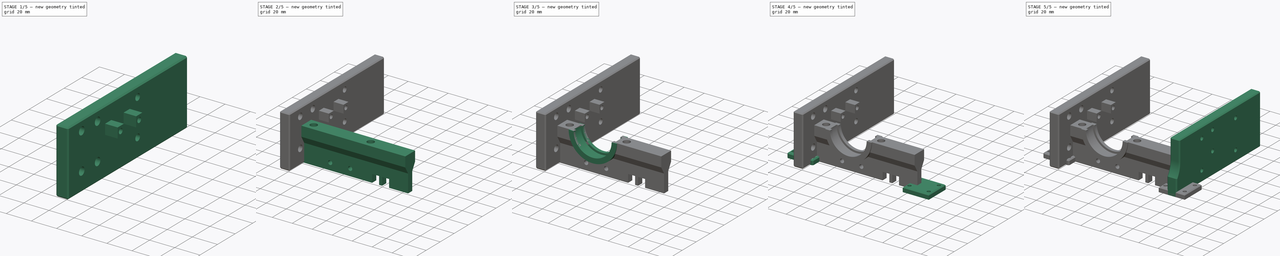
[diagram: build sequence overview — one tinted view per stage of 5, left to right]
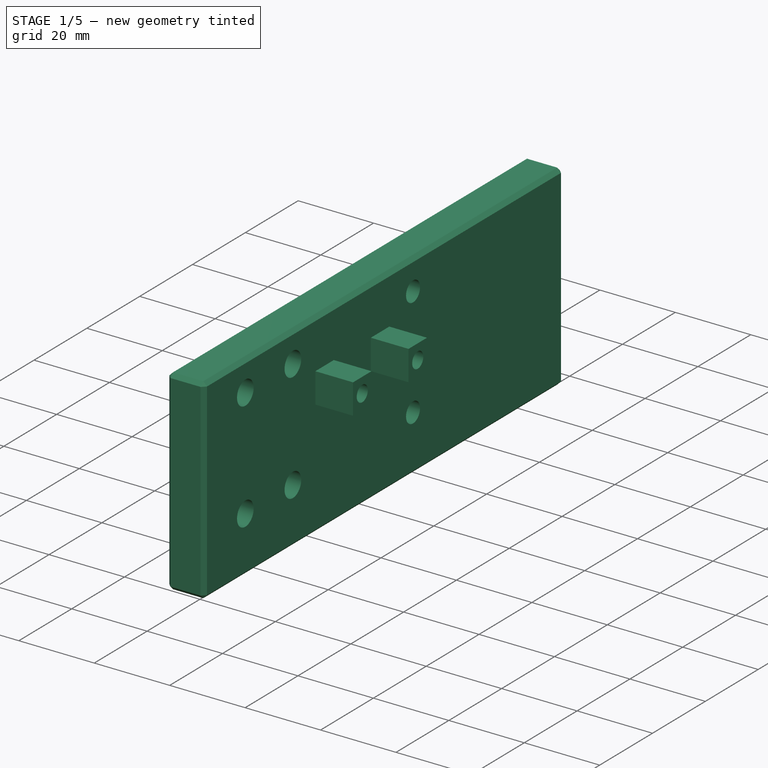
[diagram: stage 1 of 5 — iso view after this stage's code; geometry added in this stage tinted green]
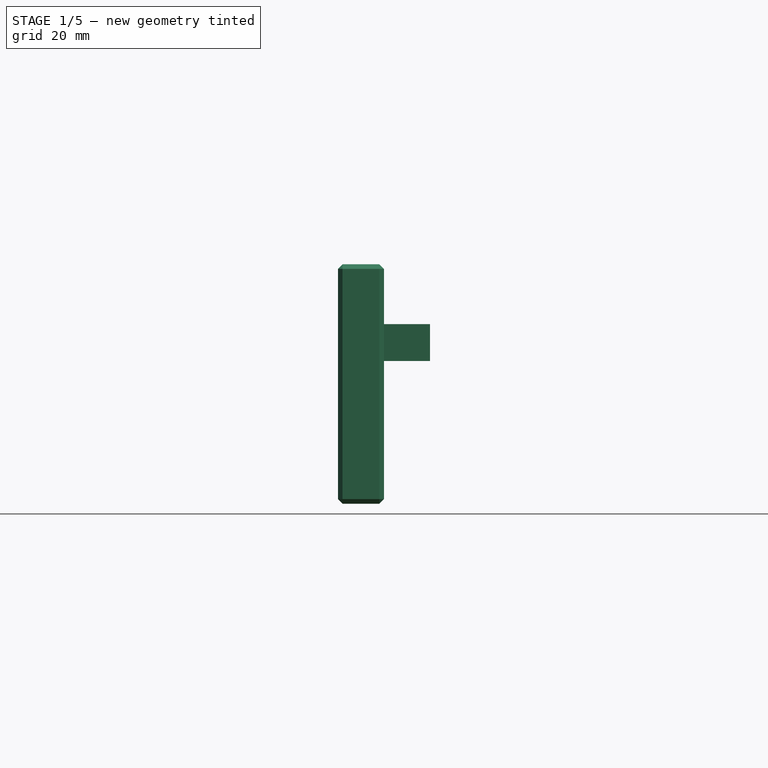
[diagram: stage 1 of 5 — front view after this stage's code; geometry added in this stage tinted green]
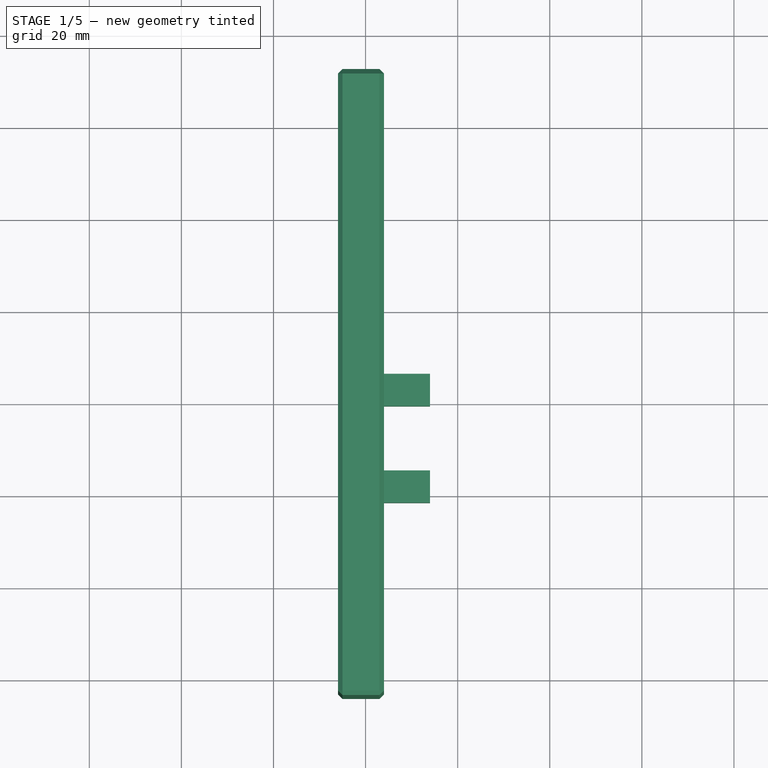
[diagram: stage 1 of 5 — top view after this stage's code; geometry added in this stage tinted green]
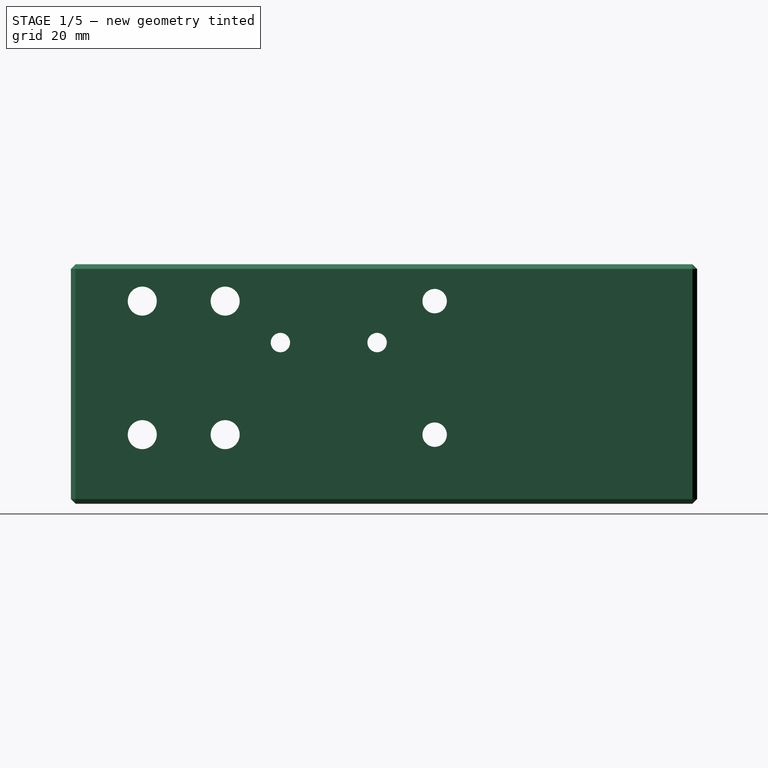
[diagram: stage 1 of 5 — right view after this stage's code; geometry added in this stage tinted green]
FCSTD DOCUMENT  (FreeCAD 0.21R32110 (Git))
Label: Frame
License: All rights reserved
LicenseURL: http://en.wikipedia.org/wiki/All_rights_reserved
objects: Sketcher::SketchObject×12, PartDesign::Pad×6, PartDesign::Pocket×6, PartDesign::Body×5, PartDesign::Chamfer×5, PartDesign::LinearPattern×1, PartDesign::CoordinateSystem×1, PartDesign::FeatureBase×1, App::Part×1
note: 54 computed .brp shape members not serialized (recipe doc carries the construction recipe); baked Part::Feature solids carry a one-line shape summary decoded from their .brp

FEATURE [Sketcher::SketchObject] Sketch008
  AttachmentOffset = pos=(0,0,-36) rot=(0,0,1;0rad)
  FullyConstrained = true
  MapMode = 5
  Placement = pos=(-36,8e-15,-8e-15) rot=(0.57735,0.57735,0.57735;2.0944rad)
  Support = -> [YZ_Plane003]
  sketch-geometry (10):
    g0: LineSegment StartX=112 StartY=17 StartZ=0 EndX=-24 EndY=17 EndZ=0
    g1: LineSegment StartX=-24 StartY=17 StartZ=0 EndX=-24 EndY=-35 EndZ=0
    g2: LineSegment StartX=-24 StartY=-35 StartZ=0 EndX=112 EndY=-35 EndZ=0
    g3: LineSegment StartX=112 StartY=-35 StartZ=0 EndX=112 EndY=17 EndZ=0
    g4: Circle CenterX=-8.5 CenterY=9 CenterZ=0 NormalX=0 NormalY=0 NormalZ=1 AngleXU=0 Radius=3.15
    g5: Circle CenterX=9.5 CenterY=9 CenterZ=0 NormalX=0 NormalY=0 NormalZ=1 AngleXU=0 Radius=3.15
    g6: Circle CenterX=9.5 CenterY=-20 CenterZ=0 NormalX=0 NormalY=0 NormalZ=1 AngleXU=0 Radius=3.15
    g7: Circle CenterX=-8.5 CenterY=-20 CenterZ=0 NormalX=0 NormalY=0 NormalZ=1 AngleXU=0 Radius=3.15
    g8: Circle CenterX=55 CenterY=9 CenterZ=0 NormalX=0 NormalY=0 NormalZ=1 AngleXU=0 Radius=2.65
    g9: Circle CenterX=55 CenterY=-20 CenterZ=0 NormalX=0 NormalY=0 NormalZ=1 AngleXU=0 Radius=2.65
  constraints (30):
    c: Coincident(g0,g1)
    c: Coincident(g1,g2)
    c: Coincident(g2,g3)
    c: Coincident(g3,g0)
    c: Horizontal(g0)
    c: Horizontal(g2)
    c: Vertical(g1)
    c: Vertical(g3)
    c: Distance(g2) = 136
    c: Distance(g1) = 52
    c: DistanceY(g2) = -35
    c: DistanceX(g1) = -24
    c: Equal(g4,g5)
    c: Equal(g4,g6)
    c: Equal(g4,g7)
    c: Diameter(g4) = 6.3
    c: Vertical(g7,g4)
    c: Vertical(g6,g5)
    c: Horizontal(g4,g5)
    c: Horizontal(g7,g6)
    c: DistanceX(g7) = -8.5
    c: DistanceY(g6,g5) = 29
    c: DistanceY(g6) = -20
    c: DistanceX(g7,g6) = 18
    c: Horizontal(g5,g8)
    c: Horizontal(g6,g9)
    c: Vertical(g9,g8)
    c: DistanceX(g1,g9) = 79
    c: Equal(g8,g9)
    c: Diameter(g8) = 5.3
FEATURE [PartDesign::Pad] Pad003
  Direction = (1,-2e-16,3e-16)
  Length = 10
  Length2 = 10
  Placement = pos=(0,0,0) rot=(0.57735,0.57735,0.57735;2.0944rad)
  Profile = -> Sketch008
  ReferenceAxis = -> Sketch008 [N_Axis]
  Reversed = true
  Type = 0
FEATURE [Sketcher::SketchObject] Sketch010
  AttachmentOffset = pos=(0,4,0) rot=(0,0,1;0rad)
  FullyConstrained = true
  MapMode = 5
  Placement = pos=(0,4,0) rot=(0,0,1;0rad)
  Support = -> [XY_Plane003]
  sketch-geometry (8):
    g0: LineSegment StartX=-36 StartY=42 StartZ=0 EndX=-26 EndY=42 EndZ=0
    g1: LineSegment StartX=-26 StartY=42 StartZ=0 EndX=-26 EndY=35 EndZ=0
    g2: LineSegment StartX=-26 StartY=35 StartZ=0 EndX=-36 EndY=35 EndZ=0
    g3: LineSegment StartX=-36 StartY=35 StartZ=0 EndX=-36 EndY=42 EndZ=0
    g4: LineSegment StartX=-36 StartY=21 StartZ=0 EndX=-26 EndY=21 EndZ=0
    g5: LineSegment StartX=-26 StartY=21 StartZ=0 EndX=-26 EndY=14 EndZ=0
    g6: LineSegment StartX=-26 StartY=14 StartZ=0 EndX=-36 EndY=14 EndZ=0
    g7: LineSegment StartX=-36 StartY=14 StartZ=0 EndX=-36 EndY=21 EndZ=0
  constraints (24):
    c: Coincident(g0,g1)
    c: Coincident(g1,g2)
    c: Coincident(g2,g3)
    c: Coincident(g3,g0)
    c: Horizontal(g0)
    c: Horizontal(g2)
    c: Vertical(g1)
    c: Vertical(g3)
    c: Coincident(g4,g5)
    c: Coincident(g5,g6)
    c: Coincident(g6,g7)
    c: Coincident(g7,g4)
    c: Horizontal(g4)
    c: Horizontal(g6)
    c: Vertical(g5)
    c: Vertical(g7)
    c: Vertical(g4,g2)
    c: DistanceX(g6) = -36
    c: Vertical(g4,g1)
    c: Equal(g1,g5)
    c: Distance(g6) = 10
    c: Distance(g5) = 7
    c: DistanceY(g6) = 14
    c: DistanceY(g4,g0) = 21
FEATURE [PartDesign::Pad] Pad005
  BaseFeature = -> Pad003
  Direction = (0,0,1)
  Length = 8
  Length2 = 10
  Midplane = true
  Placement = pos=(0,0,0) rot=(0.57735,0.57735,0.57735;2.0944rad)
  Profile = -> Sketch010
  ReferenceAxis = -> Sketch010 [N_Axis]
  Type = 0
FEATURE [Sketcher::SketchObject] Sketch011
  AttachmentOffset = pos=(4,0,-26) rot=(0,0,1;0rad)
  FullyConstrained = true
  MapMode = 5
  Placement = pos=(-26,4,-6.7e-15) rot=(0.57735,0.57735,0.57735;2.0944rad)
  Support = -> [YZ_Plane003]
  sketch-geometry (2):
    g0: Circle CenterX=38.5 CenterY=0 CenterZ=0 NormalX=0 NormalY=0 NormalZ=1 AngleXU=0 Radius=2.1
    g1: Circle CenterX=17.5 CenterY=0 CenterZ=0 NormalX=0 NormalY=0 NormalZ=1 AngleXU=0 Radius=2.1
  constraints (6):
    c: PointOnObject(g0,g-1)
    c: PointOnObject(g1,g-1)
    c: Distance(g1,g0) = 21
    c: Equal(g1,g0)
    c: Diameter(g1) = 4.2
    c: DistanceX(g1) = 17.5
FEATURE [PartDesign::Pocket] Pocket006
  BaseFeature = -> Pad005
  Direction = (-1,2e-16,-3e-16)
  Length = 5
  Length2 = 5
  Placement = pos=(0,0,0) rot=(0.57735,0.57735,0.57735;2.0944rad)
  Profile = -> Sketch011
  ReferenceAxis = -> Sketch011 [N_Axis]
  Type = 1
FEATURE [PartDesign::Body] Body001  label="Rear"
  BaseFeature = -> Body
  Group = -> [Clone]
  Origin = -> Origin002
  Placement = pos=(0,100,0) rot=(0,0,1;0rad)
  Tip = -> Clone
FEATURE [PartDesign::Chamfer] Chamfer004
  Angle = 45
  Base = -> Pocket006 [Face3,Face1,Face2,Face6]
  BaseFeature = -> Pocket006
  ChamferType = 0
  FlipDirection = false
  Placement = pos=(0,0,0) rot=(0.57735,0.57735,0.57735;2.0944rad)
  Size = 1
  Size2 = 1
  SupportTransform = false
  UseAllEdges = false
FEATURE [PartDesign::Body] Body002  label="LHS"
  Group = -> [Sketch008,Pad003,Sketch010,Pad005,Sketch011,Pocket006,Chamfer,Chamfer004]
  Origin = -> Origin003
  Placement = pos=(-6,0,0) rot=(0,0,1;0rad)
  Tip = -> Chamfer004
FEATURE [App::Part] Part  label="Frame"
  Group = -> [Body,Body002,Body003,Body001,LCS_1,Body004]
  Origin = -> Origin001
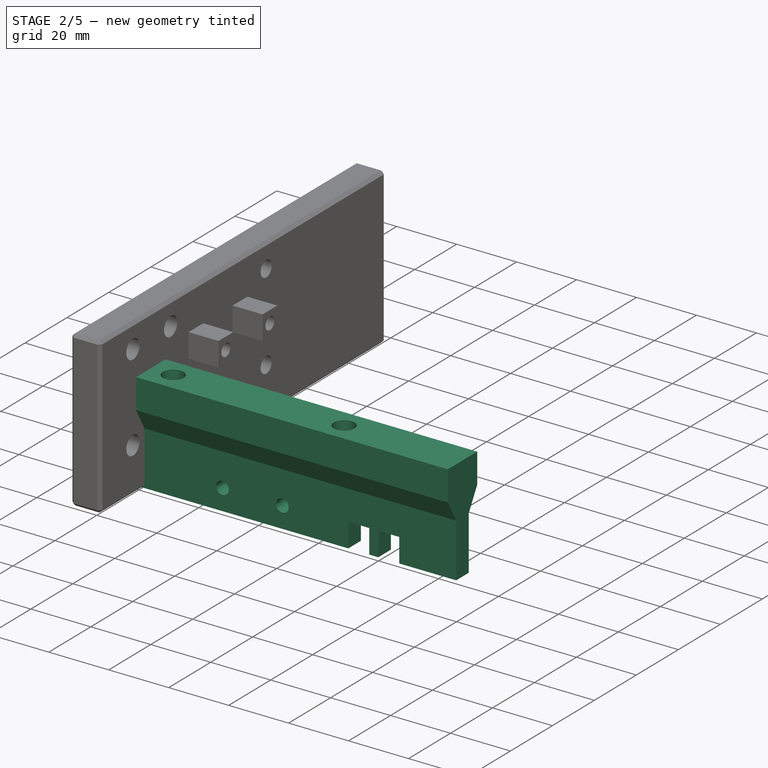
[diagram: stage 2 of 5 — iso view after this stage's code; geometry added in this stage tinted green]
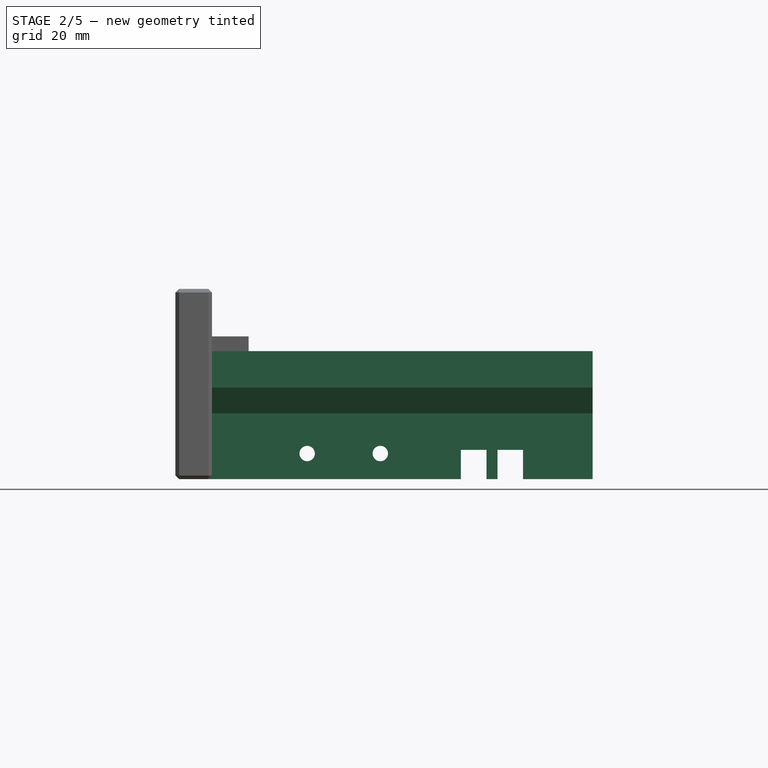
[diagram: stage 2 of 5 — front view after this stage's code; geometry added in this stage tinted green]
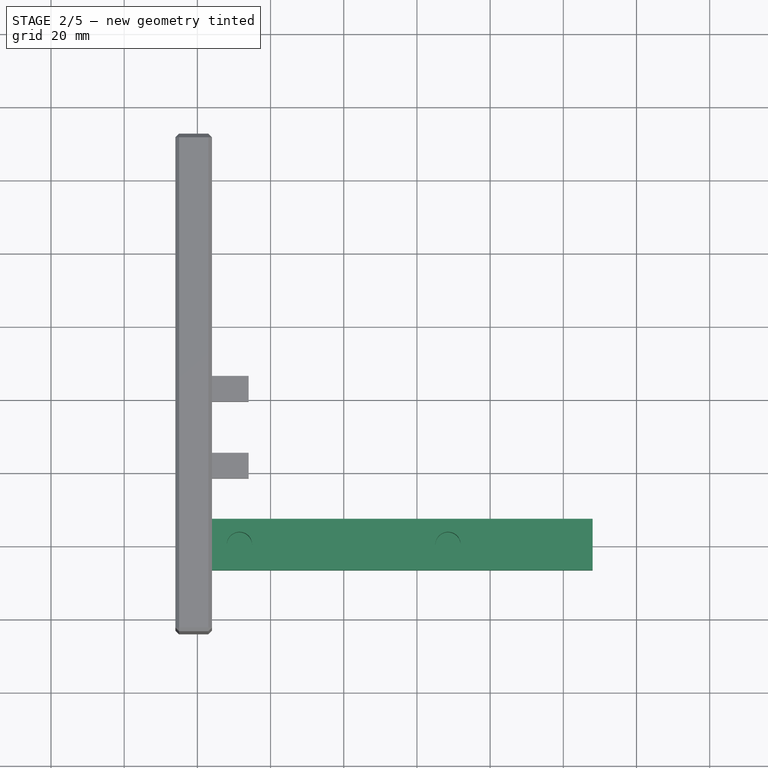
[diagram: stage 2 of 5 — top view after this stage's code; geometry added in this stage tinted green]
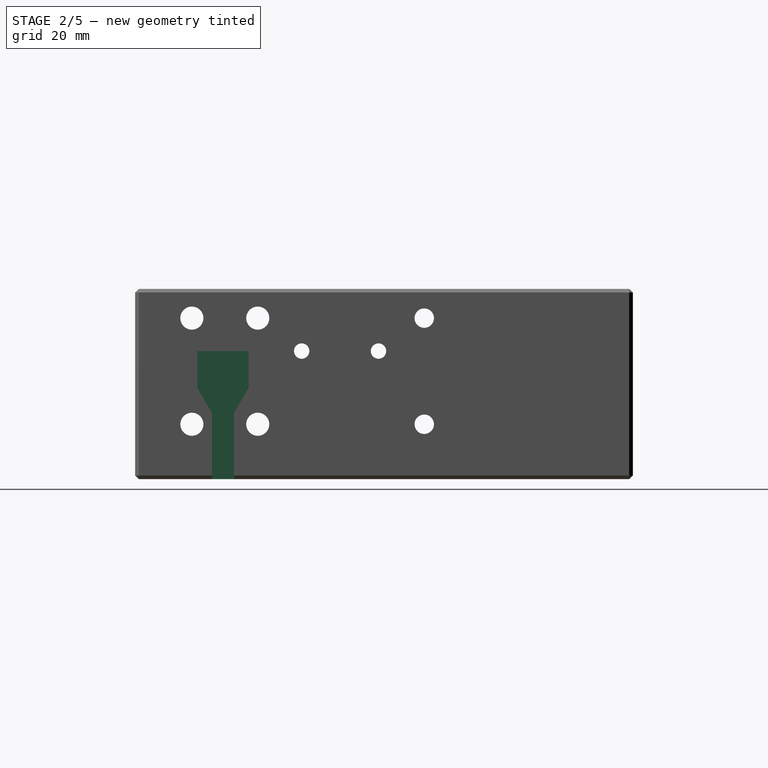
[diagram: stage 2 of 5 — right view after this stage's code; geometry added in this stage tinted green]
FEATURE [Sketcher::SketchObject] Sketch
  AttachmentOffset = pos=(0,0,-42) rot=(0,0,1;0rad)
  FullyConstrained = true
  MapMode = 5
  Placement = pos=(-42,9.3e-15,-9.3e-15) rot=(0.57735,0.57735,0.57735;2.0944rad)
  Support = -> [YZ_Plane004]
  sketch-geometry (8):
    g0: LineSegment StartX=-7 StartY=0 StartZ=0 EndX=7 EndY=0 EndZ=0
    g1: LineSegment StartX=7 StartY=0 StartZ=0 EndX=7 EndY=-10 EndZ=0
    g2: LineSegment StartX=7 StartY=-10 StartZ=0 EndX=3 EndY=-17 EndZ=0
    g3: LineSegment StartX=3 StartY=-17 StartZ=0 EndX=3 EndY=-35 EndZ=0
    g4: LineSegment StartX=3 StartY=-35 StartZ=0 EndX=-3 EndY=-35 EndZ=0
    g5: LineSegment StartX=-3 StartY=-35 StartZ=0 EndX=-3 EndY=-17 EndZ=0
    g6: LineSegment StartX=-3 StartY=-17 StartZ=0 EndX=-7 EndY=-10 EndZ=0
    g7: LineSegment StartX=-7 StartY=-10 StartZ=0 EndX=-7 EndY=0 EndZ=0
  constraints (22):
    c: Coincident(g0,g1)
    c: Coincident(g1,g2)
    c: Coincident(g2,g3)
    c: Vertical(g3)
    c: Coincident(g3,g4)
    c: Coincident(g4,g5)
    c: Vertical(g5)
    c: Coincident(g5,g6)
    c: Coincident(g6,g7)
    c: Coincident(g7,g0)
    c: Vertical(g7)
    c: Vertical(g1)
    c: Equal(g7,g1)
    c: Equal(g5,g3)
    c: Symmetric(g0,g0,g-2)
    c: Distance(g0) = 14
    c: Distance(g4) = 6
    c: Symmetric(g4,g3,g-2)
    c: Distance(g5) = 18
    c: Horizontal(g0,g-1)
    c: DistanceY(g4) = -35
    c: Distance(g7) = 10
FEATURE [PartDesign::Pad] Pad
  Direction = (1,-2e-16,3e-16)
  Length = 110
  Length2 = 10
  Placement = pos=(0,0,0) rot=(0.57735,0.57735,0.57735;2.0944rad)
  Profile = -> Sketch
  ReferenceAxis = -> Sketch [N_Axis]
  Type = 0
FEATURE [Sketcher::SketchObject] Sketch001
  FullyConstrained = true
  MapMode = 5
  Placement = pos=(0,0,0) rot=(1,0,0;1.5708rad)
  Support = -> [XZ_Plane]
  sketch-geometry (1):
    g0: Circle CenterX=0 CenterY=0 CenterZ=0 NormalX=0 NormalY=0 NormalZ=1 AngleXU=0 Radius=21
  constraints (2):
    c: Coincident(g0,g-1)
    c: Diameter(g0) = 42
FEATURE [Sketcher::SketchObject] Sketch002
  FullyConstrained = true
  MapMode = 5
  Support = -> [XY_Plane]
  sketch-geometry (2):
    g0: Circle CenterX=-28.5 CenterY=0 CenterZ=0 NormalX=0 NormalY=0 NormalZ=1 AngleXU=0 Radius=3.45
    g1: Circle CenterX=28.5 CenterY=0 CenterZ=0 NormalX=0 NormalY=0 NormalZ=1 AngleXU=0 Radius=3.45
  constraints (5):
    c: PointOnObject(g0,g-1)
    c: Equal(g0,g1)
    c: Diameter(g0) = 6.9
    c: Symmetric(g0,g1,g-2)
    c: DistanceX(g0,g1) = 57
FEATURE [PartDesign::Pocket] Pocket001
  BaseFeature = -> Pad
  Direction = (0,0,-1)
  Length = 11
  Length2 = 5
  Placement = pos=(0,0,0) rot=(0.57735,0.57735,0.57735;2.0944rad)
  Profile = -> Sketch002
  ReferenceAxis = -> Sketch002 [N_Axis]
  Type = 0
FEATURE [Sketcher::SketchObject] Sketch003
  FullyConstrained = true
  MapMode = 5
  Placement = pos=(0,0,0) rot=(1,0,0;1.5708rad)
  Support = -> [XZ_Plane]
  sketch-geometry (1):
    g0: Circle CenterX=0 CenterY=0 CenterZ=0 NormalX=0 NormalY=0 NormalZ=1 AngleXU=0 Radius=19
  constraints (2):
    c: Coincident(g0,g-1)
    c: Diameter(g0) = 38
FEATURE [Sketcher::SketchObject] Sketch004
  FullyConstrained = true
  MapMode = 5
  Placement = pos=(0,0,0) rot=(1,0,0;1.5708rad)
  Support = -> [XZ_Plane]
  sketch-geometry (2):
    g0: Circle CenterX=-10 CenterY=-28 CenterZ=0 NormalX=0 NormalY=0 NormalZ=1 AngleXU=0 Radius=2.1
    g1: Circle CenterX=10 CenterY=-28 CenterZ=0 NormalX=0 NormalY=0 NormalZ=1 AngleXU=0 Radius=2.1
  constraints (5):
    c: DistanceX(g0,g1) = 20
    c: Symmetric(g0,g1,g-2)
    c: Equal(g0,g1)
    c: Diameter(g0) = 4.2
    c: DistanceY(g0) = -28
FEATURE [PartDesign::Pocket] Pocket003
  BaseFeature = -> Pocket001
  Direction = (0,1,2e-16)
  Length = 5
  Length2 = 5
  Midplane = true
  Placement = pos=(0,0,0) rot=(0.57735,0.57735,0.57735;2.0944rad)
  Profile = -> Sketch004
  ReferenceAxis = -> Sketch004 [N_Axis]
  Type = 1
FEATURE [Sketcher::SketchObject] Sketch005
  FullyConstrained = true
  MapMode = 5
  Placement = pos=(0,0,0) rot=(1,0,0;1.5708rad)
  Support = -> [XZ_Plane]
  sketch-geometry (8):
    g0: LineSegment StartX=32 StartY=-35 StartZ=0 EndX=39 EndY=-35 EndZ=0
    g1: LineSegment StartX=39 StartY=-35 StartZ=0 EndX=39 EndY=-27 EndZ=0
    g2: LineSegment StartX=39 StartY=-27 StartZ=0 EndX=32 EndY=-27 EndZ=0
    g3: LineSegment StartX=32 StartY=-27 StartZ=0 EndX=32 EndY=-35 EndZ=0
    g4: LineSegment StartX=42 StartY=-35 StartZ=0 EndX=49 EndY=-35 EndZ=0
    g5: LineSegment StartX=49 StartY=-35 StartZ=0 EndX=49 EndY=-27 EndZ=0
    g6: LineSegment StartX=49 StartY=-27 StartZ=0 EndX=42 EndY=-27 EndZ=0
    g7: LineSegment StartX=42 StartY=-27 StartZ=0 EndX=42 EndY=-35 EndZ=0
  constraints (24):
    c: Coincident(g0,g1)
    c: Coincident(g1,g2)
    c: Coincident(g2,g3)
    c: Coincident(g3,g0)
    c: Horizontal(g0)
    c: Horizontal(g2)
    c: Vertical(g1)
    c: Vertical(g3)
    c: Coincident(g4,g5)
    c: Coincident(g5,g6)
    c: Coincident(g6,g7)
    c: Coincident(g7,g4)
    c: Horizontal(g4)
    c: Horizontal(g6)
    c: Vertical(g5)
    c: Vertical(g7)
    c: Distance(g0) = 7
    c: Equal(g0,g4)
    c: Distance(g3) = 8
    c: Equal(g3,g7)
    c: Horizontal(g0,g4)
    c: DistanceX(g0,g4) = 3
    c: DistanceX(g0) = 32
    c: DistanceY(g0) = -35
FEATURE [PartDesign::Pocket] Pocket004
  BaseFeature = -> Pocket003
  Direction = (0,1,2e-16)
  Length = 5
  Length2 = 5
  Midplane = true
  Placement = pos=(0,0,0) rot=(0.57735,0.57735,0.57735;2.0944rad)
  Profile = -> Sketch005
  ReferenceAxis = -> Sketch005 [N_Axis]
  Type = 1
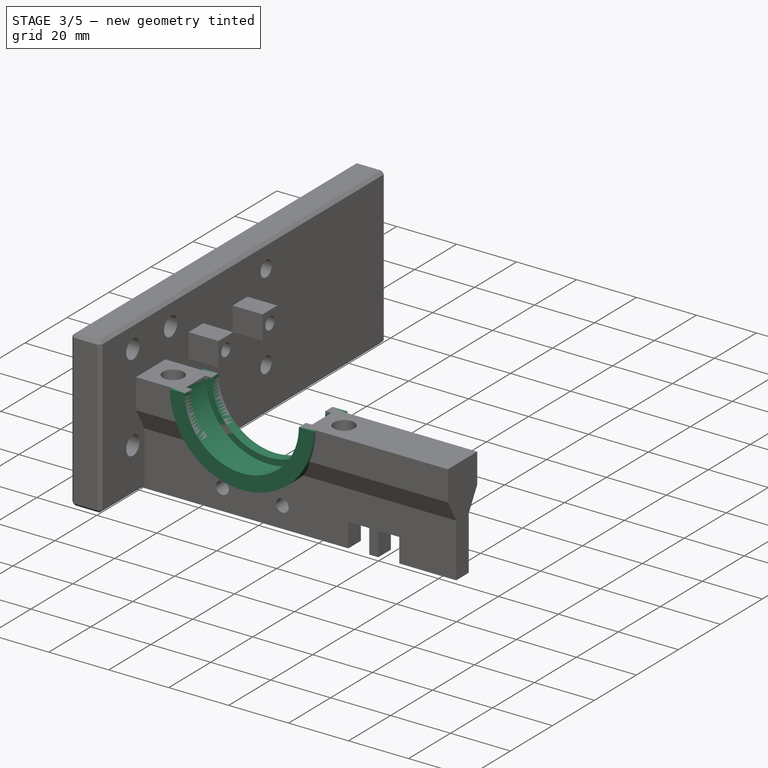
[diagram: stage 3 of 5 — iso view after this stage's code; geometry added in this stage tinted green]
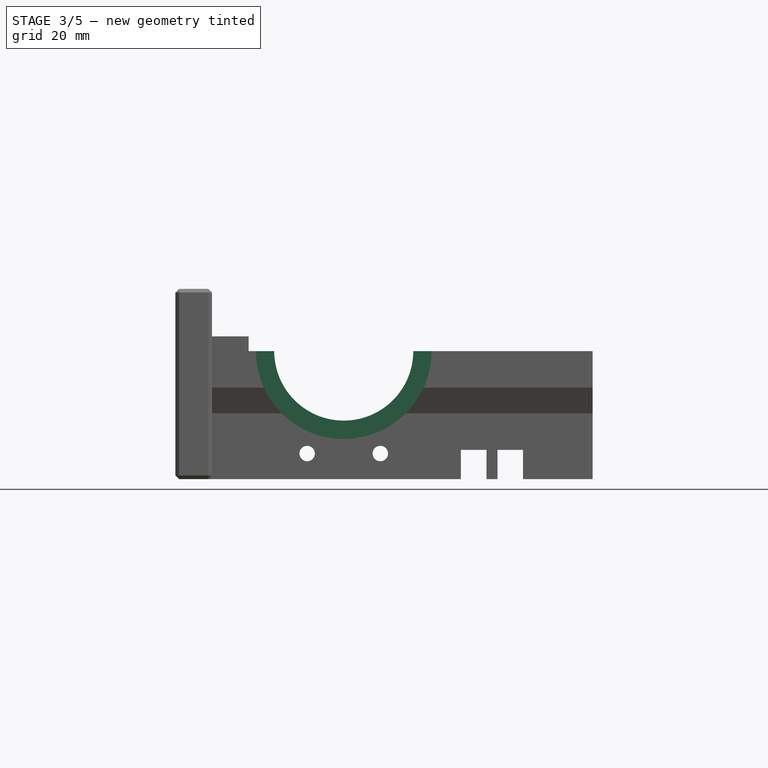
[diagram: stage 3 of 5 — front view after this stage's code; geometry added in this stage tinted green]
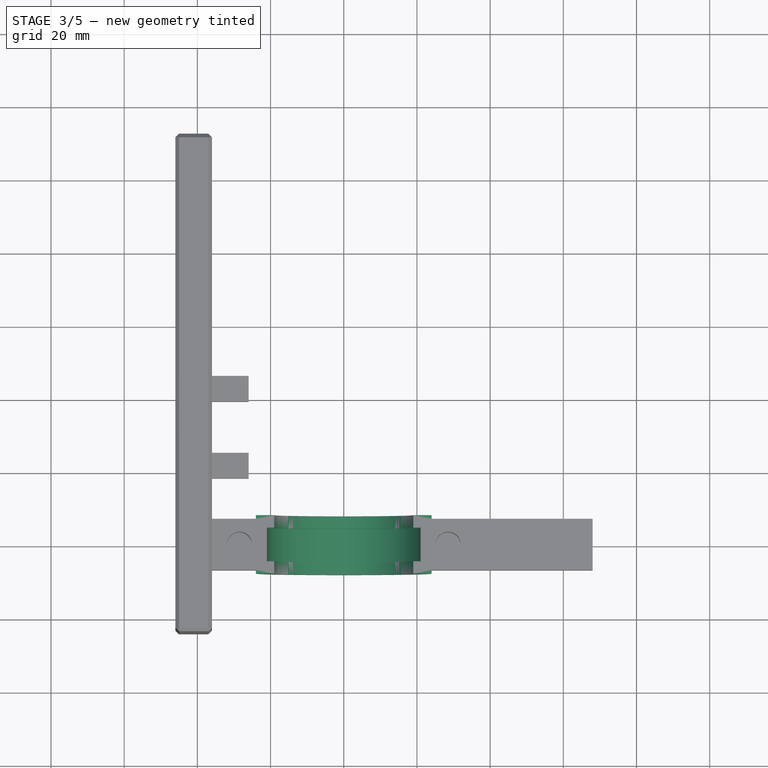
[diagram: stage 3 of 5 — top view after this stage's code; geometry added in this stage tinted green]
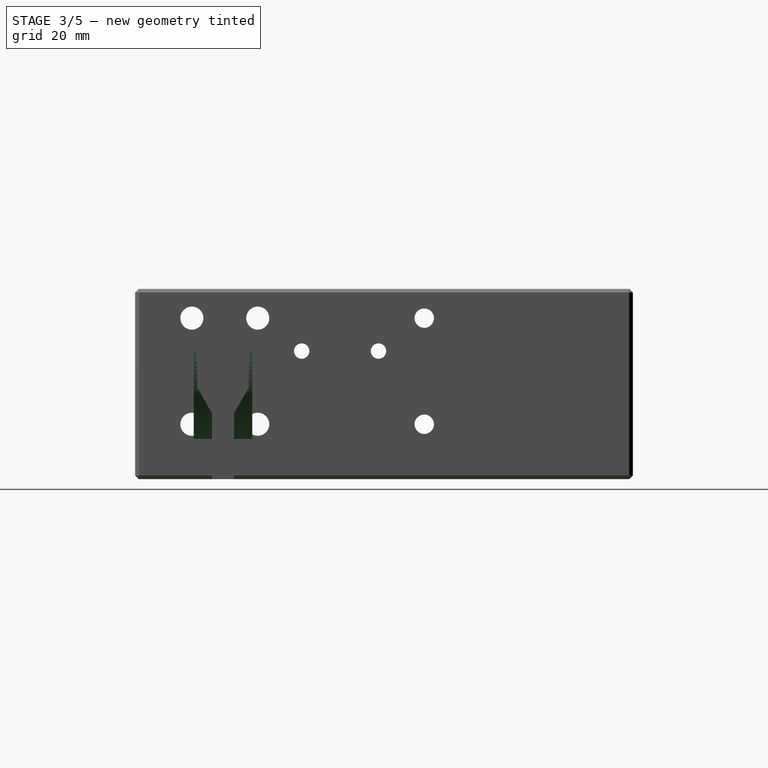
[diagram: stage 3 of 5 — right view after this stage's code; geometry added in this stage tinted green]
FEATURE [Sketcher::SketchObject] Sketch006
  FullyConstrained = true
  MapMode = 5
  Placement = pos=(0,0,0) rot=(1,0,0;1.5708rad)
  Support = -> [XZ_Plane]
  sketch-geometry (2):
    g0: LineSegment StartX=-24 StartY=2.9e-15 StartZ=0 EndX=24 EndY=-5.69382e-05 EndZ=0
    g1: ArcOfCircle CenterX=0 CenterY=0 CenterZ=0 NormalX=0 NormalY=0 NormalZ=1 AngleXU=0 Radius=24 StartAngle=3.14159 EndAngle=6.28318
  constraints (6):
    c: Coincident(g1,g-1)
    c: Diameter(g1) = 48
    c: Coincident(g0,g1)
    c: Coincident(g0,g1)
    c: DistanceY(g0) = 0
    c: DistanceX(g0,g0) = 48
FEATURE [PartDesign::Pad] Pad001
  BaseFeature = -> Pocket004
  Direction = (0,-1,-2e-16)
  Length = 16
  Length2 = 10
  Midplane = true
  Placement = pos=(0,0,0) rot=(0.57735,0.57735,0.57735;2.0944rad)
  Profile = -> Sketch006
  ReferenceAxis = -> Sketch006 [N_Axis]
  Type = 0
FEATURE [PartDesign::Pocket] Pocket
  BaseFeature = -> Pad001
  Direction = (0,1,2e-16)
  Length = 18
  Length2 = 5
  Midplane = true
  Placement = pos=(0,0,0) rot=(0.57735,0.57735,0.57735;2.0944rad)
  Profile = -> Sketch003
  ReferenceAxis = -> Sketch003 [N_Axis]
  Type = 0
FEATURE [PartDesign::Pocket] Pocket005
  BaseFeature = -> Pocket
  Direction = (0,1,2e-16)
  Length = 9.2
  Length2 = 5
  Midplane = true
  Placement = pos=(0,0,0) rot=(0.57735,0.57735,0.57735;2.0944rad)
  Profile = -> Sketch001
  ReferenceAxis = -> Sketch001 [N_Axis]
  Type = 0
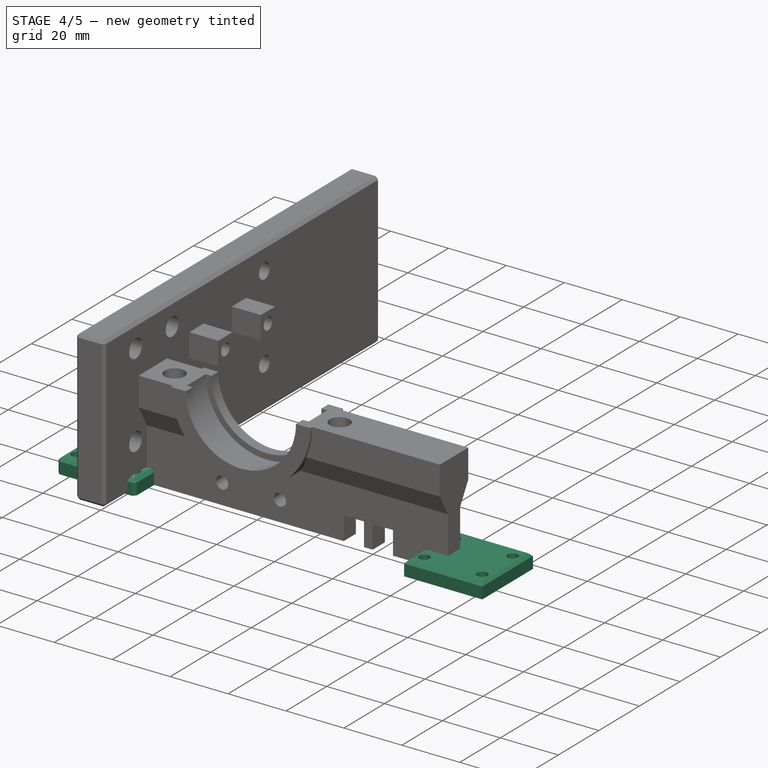
[diagram: stage 4 of 5 — iso view after this stage's code; geometry added in this stage tinted green]
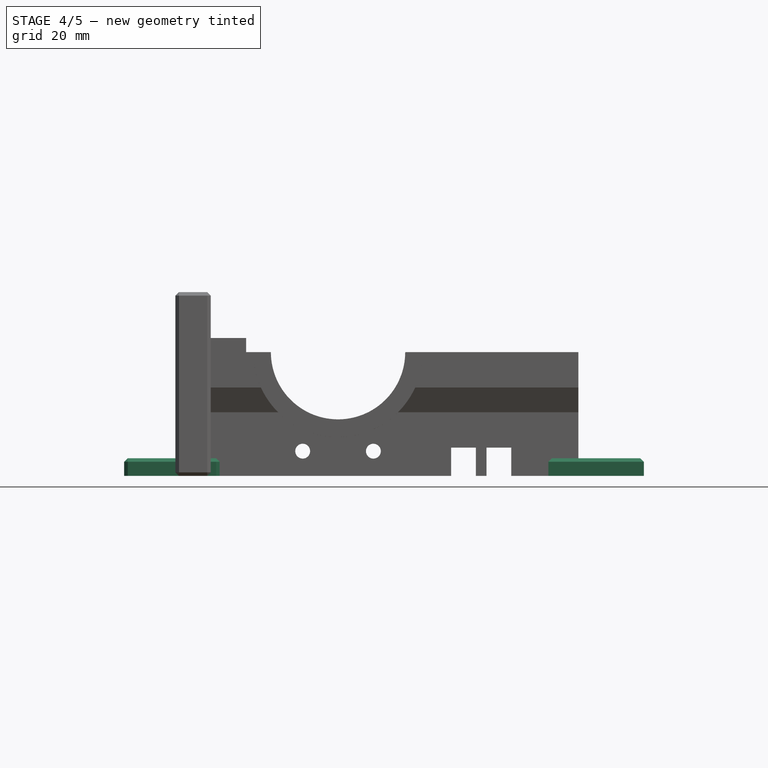
[diagram: stage 4 of 5 — front view after this stage's code; geometry added in this stage tinted green]
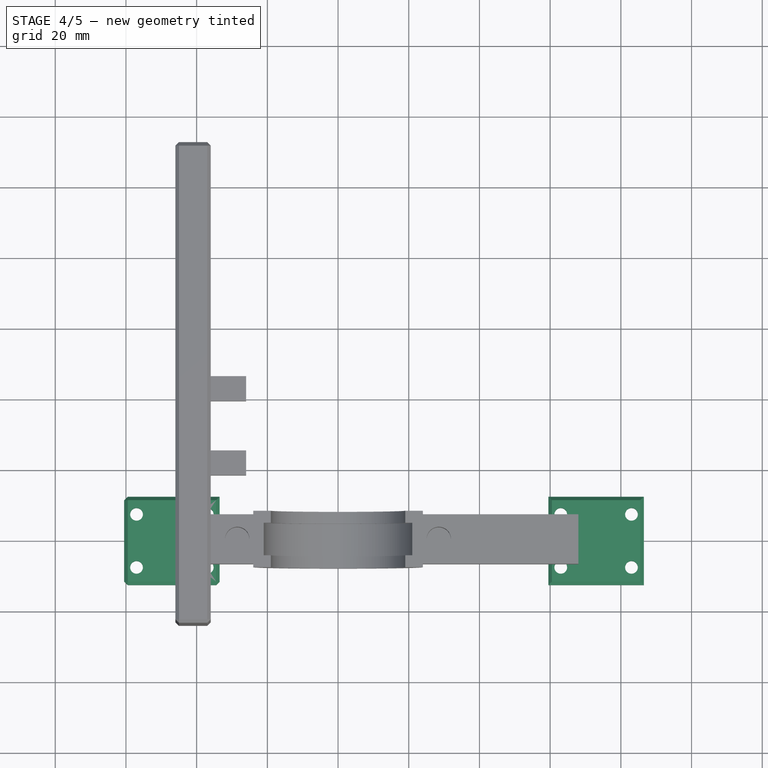
[diagram: stage 4 of 5 — top view after this stage's code; geometry added in this stage tinted green]
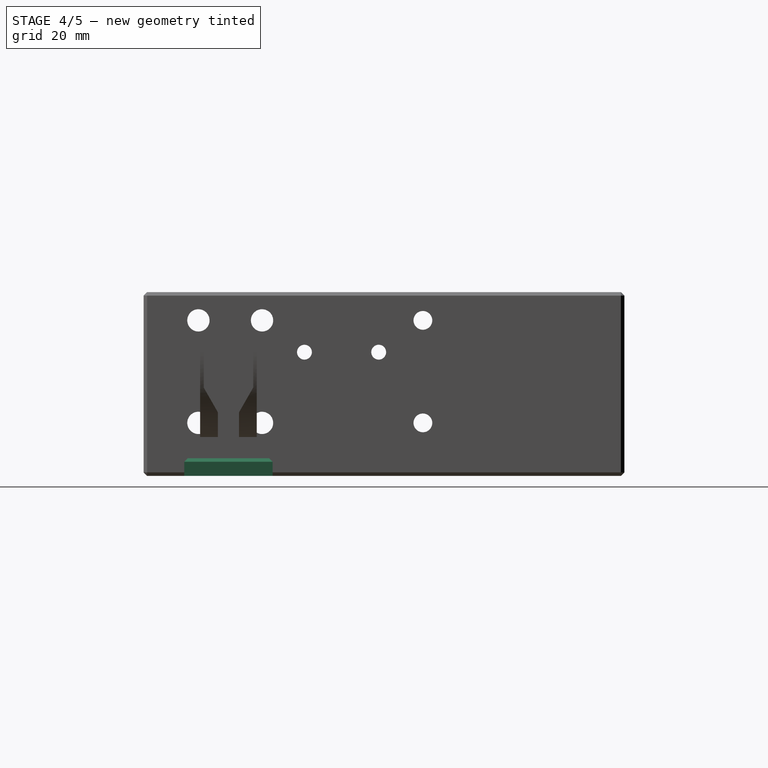
[diagram: stage 4 of 5 — right view after this stage's code; geometry added in this stage tinted green]
FEATURE [Sketcher::SketchObject] Sketch007
  AttachmentOffset = pos=(-18,21,-30) rot=(0,0,1;0rad)
  FullyConstrained = true
  MapMode = 5
  Placement = pos=(-123,-11.5,-35) rot=(0,0,1;0rad)
  sketch-geometry (8):
    g0: LineSegment StartX=62.5 StartY=-1 StartZ=0 EndX=89.5 EndY=-1 EndZ=0
    g1: LineSegment StartX=89.5 StartY=-1 StartZ=0 EndX=89.5 EndY=24 EndZ=0
    g2: LineSegment StartX=89.5 StartY=24 StartZ=0 EndX=62.5 EndY=24 EndZ=0
    g3: LineSegment StartX=62.5 StartY=24 StartZ=0 EndX=62.5 EndY=-1 EndZ=0
    g4: Circle CenterX=66 CenterY=19 CenterZ=0 NormalX=0 NormalY=0 NormalZ=1 AngleXU=0 Radius=1.8
    g5: Circle CenterX=86 CenterY=19 CenterZ=0 NormalX=0 NormalY=0 NormalZ=1 AngleXU=0 Radius=1.8
    g6: Circle CenterX=86 CenterY=4 CenterZ=0 NormalX=0 NormalY=0 NormalZ=1 AngleXU=0 Radius=1.8
    g7: Circle CenterX=66 CenterY=4 CenterZ=0 NormalX=0 NormalY=0 NormalZ=1 AngleXU=0 Radius=1.8
  constraints (24):
    c: Coincident(g0,g1)
    c: Coincident(g1,g2)
    c: Coincident(g2,g3)
    c: Coincident(g3,g0)
    c: Horizontal(g0)
    c: Horizontal(g2)
    c: Vertical(g1)
    c: Vertical(g3)
    c: DistanceX(g0,g0) = 27
    c: DistanceY(g1,g1) = 25
    c: Vertical(g7,g4)
    c: Vertical(g6,g5)
    c: Horizontal(g4,g5)
    c: Horizontal(g7,g6)
    c: DistanceX(g7,g6) = 20
    c: DistanceY(g6,g5) = 15
    c: Equal(g4,g5)
    c: Equal(g4,g6)
    c: Equal(g4,g7)
    c: Diameter(g4) = 3.6
    c: DistanceY(g0,g6) = 5
    c: DistanceX(g6,g0) = 3.5
    c: DistanceX(g5) = 86
    c: DistanceY(g5) = 19
FEATURE [PartDesign::Pad] Pad002
  BaseFeature = -> Pocket005
  Direction = (0,0,1)
  Length = 5
  Length2 = 10
  Placement = pos=(0,0,0) rot=(0.57735,0.57735,0.57735;2.0944rad)
  Profile = -> Sketch007
  ReferenceAxis = -> Sketch007 [N_Axis]
  Type = 0
FEATURE [PartDesign::LinearPattern] LinearPattern
  BaseFeature = -> Pad002
  Direction = -> Sketch007 [H_Axis]
  Length = 120
  Occurrences = 2
  Originals = -> [Pad002]
  Placement = pos=(0,0,0) rot=(0.57735,0.57735,0.57735;2.0944rad)
FEATURE [PartDesign::Body] Body003  label="RHS"
  Group = -> [Sketch012,Pad006,Chamfer001]
  Origin = -> Origin004
  Tip = -> Chamfer001
FEATURE [PartDesign::Chamfer] Chamfer002
  Angle = 45
  Base = -> LinearPattern [Edge125,Edge123,Edge124,Edge121,Edge119]
  BaseFeature = -> LinearPattern
  ChamferType = 0
  FlipDirection = false
  Placement = pos=(0,0,0) rot=(0.57735,0.57735,0.57735;2.0944rad)
  Size = 1
  Size2 = 1
  SupportTransform = false
  UseAllEdges = false
FEATURE [PartDesign::Chamfer] Chamfer003
  Angle = 45
  Base = -> Chamfer002 [Edge79,Edge78,Edge74,Edge75,Edge152,Edge156,Edge151,Edge76]
  BaseFeature = -> Chamfer002
  ChamferType = 0
  FlipDirection = false
  Placement = pos=(0,0,0) rot=(0.57735,0.57735,0.57735;2.0944rad)
  Size = 1
  Size2 = 1
  SupportTransform = false
  UseAllEdges = false
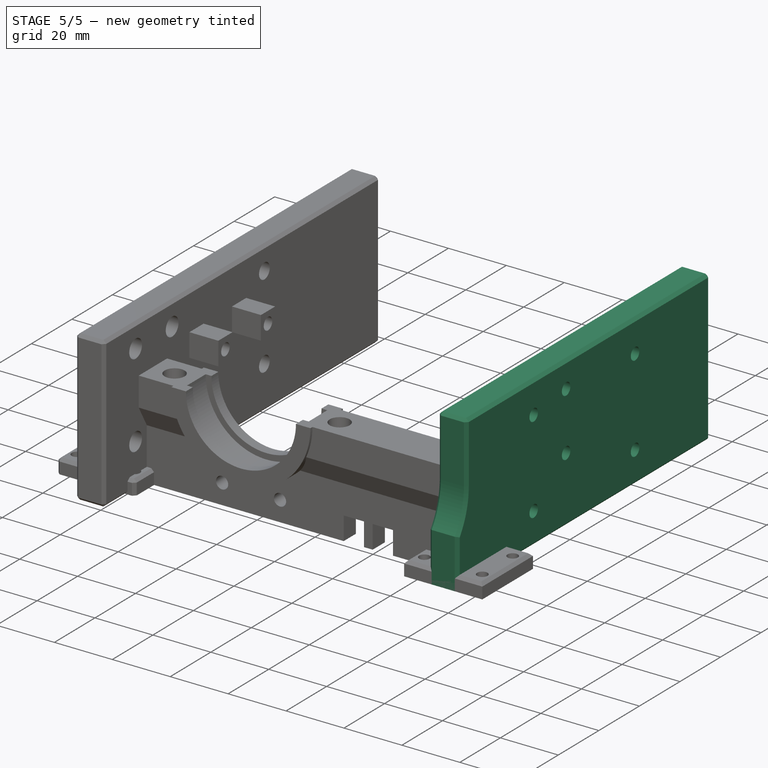
[diagram: stage 5 of 5 — iso view after this stage's code; geometry added in this stage tinted green]
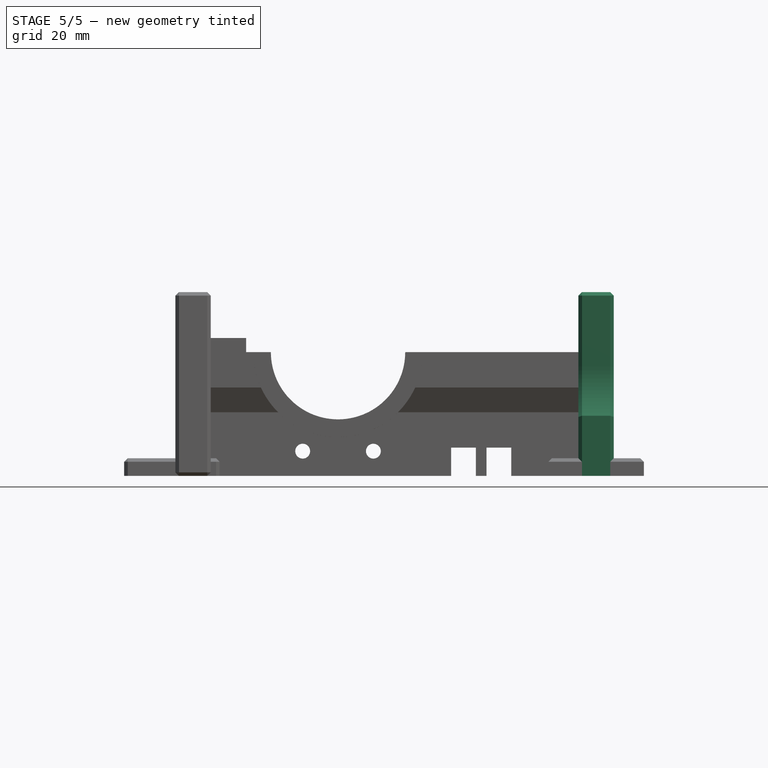
[diagram: stage 5 of 5 — front view after this stage's code; geometry added in this stage tinted green]
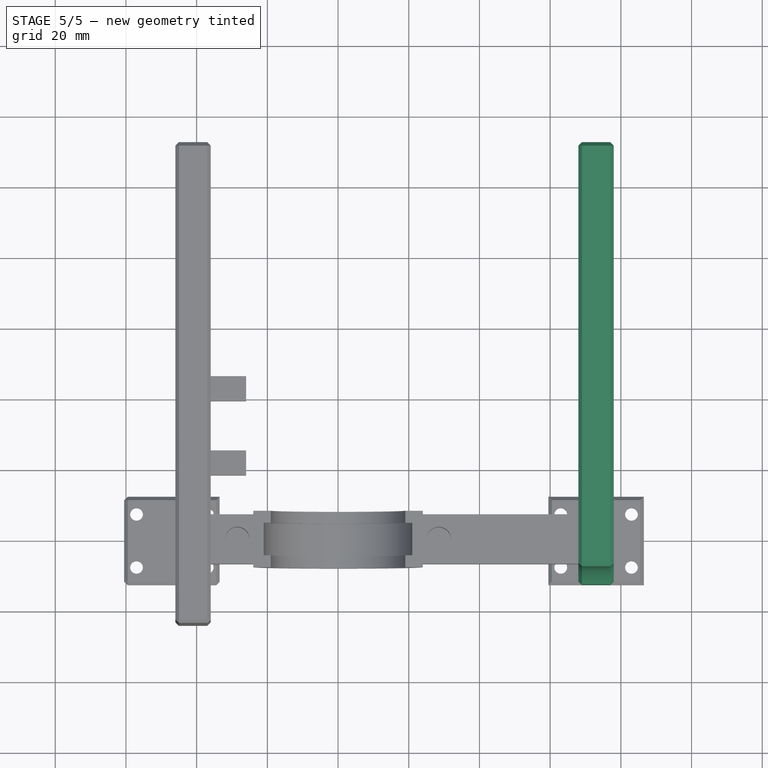
[diagram: stage 5 of 5 — top view after this stage's code; geometry added in this stage tinted green]
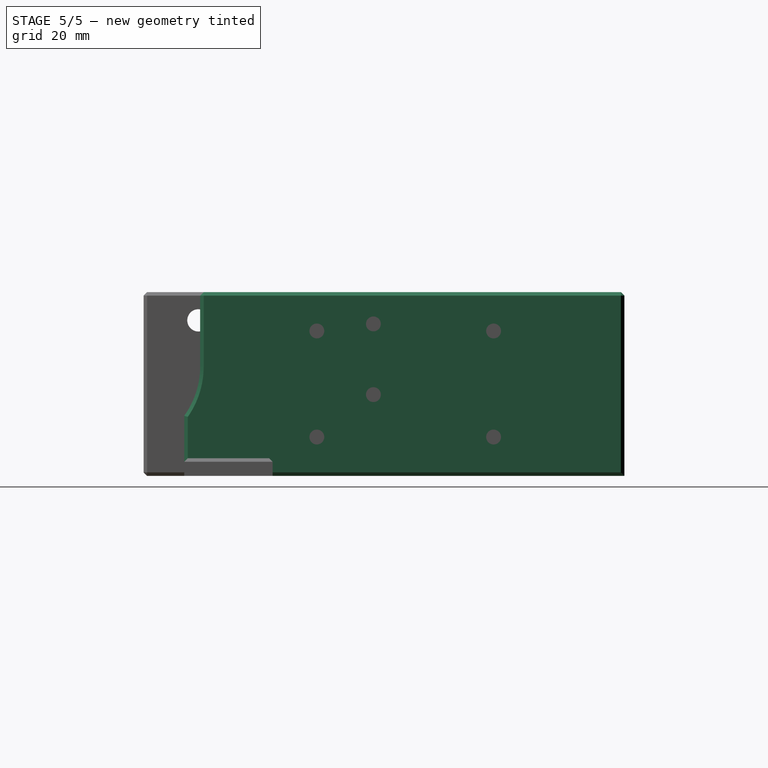
[diagram: stage 5 of 5 — right view after this stage's code; geometry added in this stage tinted green]
FEATURE [Sketcher::SketchObject] Sketch012
  AttachmentOffset = pos=(0,0,68) rot=(0,0,1;0rad)
  FullyConstrained = true
  MapMode = 5
  Placement = pos=(68,-1.51e-14,1.51e-14) rot=(0.57735,0.57735,0.57735;2.0944rad)
  Support = -> [YZ_Plane004]
  sketch-geometry (12):
    g0: LineSegment StartX=-8 StartY=17 StartZ=0 EndX=112 EndY=17 EndZ=0
    g1: LineSegment StartX=112 StartY=17 StartZ=0 EndX=112 EndY=-35 EndZ=0
    g2: LineSegment StartX=112 StartY=-35 StartZ=0 EndX=-12.5 EndY=-35 EndZ=0
    g3: LineSegment StartX=-12.5 StartY=-35 StartZ=0 EndX=-12.5 EndY=-17.9911 EndZ=0
    g4: ArcOfCircle CenterX=-32 CenterY=-4 CenterZ=0 NormalX=0 NormalY=0 NormalZ=1 AngleXU=0 Radius=24 StartAngle=5.66082 EndAngle=6.28319
    g5: Circle CenterX=41 CenterY=8 CenterZ=0 NormalX=0 NormalY=0 NormalZ=1 AngleXU=0 Radius=2.1
    g6: Circle CenterX=41 CenterY=-12 CenterZ=0 NormalX=0 NormalY=0 NormalZ=1 AngleXU=0 Radius=2.1
    g7: Circle CenterX=75 CenterY=-24 CenterZ=0 NormalX=0 NormalY=0 NormalZ=1 AngleXU=0 Radius=2.1
    g8: Circle CenterX=25 CenterY=-24 CenterZ=0 NormalX=0 NormalY=0 NormalZ=1 AngleXU=0 Radius=2.1
    g9: Circle CenterX=25 CenterY=6 CenterZ=0 NormalX=0 NormalY=0 NormalZ=1 AngleXU=0 Radius=2.1
    g10: Circle CenterX=75 CenterY=6 CenterZ=0 NormalX=0 NormalY=0 NormalZ=1 AngleXU=0 Radius=2.1
    g11: LineSegment StartX=-8 StartY=17 StartZ=0 EndX=-8 EndY=-4 EndZ=0
  constraints (36):
    c: Coincident(g0,g1)
    c: Coincident(g1,g2)
    c: Coincident(g2,g3)
    c: Horizontal(g0)
    c: Horizontal(g2)
    c: Vertical(g1)
    c: Vertical(g3)
    c: Distance(g1) = 52
    c: DistanceY(g2) = -35
    c: Diameter(g4) = 48
    c: DistanceX(g4) = -32
    c: Coincident(g3,g4)
    c: Vertical(g6,g5)
    c: Equal(g5,g6)
    c: Diameter(g5) = 4.2
    c: DistanceY(g5) = 8
    c: DistanceX(g5) = 41
    c: Distance(g5,g6) = 20
    c: Diameter(g8) = 4.2
    c: Vertical(g9,g8)
    c: Vertical(g7,g10)
    c: Horizontal(g9,g10)
    c: Equal(g7,g10)
    c: Equal(g10,g9)
    c: Distance(g8,g9) = 30
    c: DistanceY(g4) = -4
    c: Coincident(g11,g0)
    c: Tangent(g11,g4) = 1.5708
    c: Vertical(g11)
    c: DistanceX(g1) = 112
    c: Distance(g2) = 124.5
    c: DistanceX(g8) = 25
    c: DistanceY(g8) = -24
    c: Distance(g8,g7) = 50
    c: Horizontal(g8,g7)
    c: Equal(g8,g9)
FEATURE [PartDesign::Pad] Pad006
  Direction = (1,-2e-16,3e-16)
  Length = 10
  Length2 = 10
  Placement = pos=(0,0,0) rot=(0.57735,0.57735,0.57735;2.0944rad)
  Profile = -> Sketch012
  ReferenceAxis = -> Sketch012 [N_Axis]
  Type = 0
FEATURE [PartDesign::CoordinateSystem] LCS_1
  AttacherType = Attacher::AttachEngine3D
FEATURE [PartDesign::Body] Body004  label="Front_IR_Tab"
  Origin = -> Origin005
FEATURE [PartDesign::Chamfer] Chamfer
  Angle = 45
  Base = -> Pocket006 [Edge4,Edge3,Edge2,Edge1,Edge9,Edge10,Edge8,Edge7,Face2,Edge6,Edge11,Edge26]
  BaseFeature = -> Pocket006
  ChamferType = 0
  FlipDirection = false
  Placement = pos=(0,0,0) rot=(0.57735,0.57735,0.57735;2.0944rad)
  Size = 1
  Size2 = 1
  SupportTransform = false
  UseAllEdges = false
FEATURE [PartDesign::Chamfer] Chamfer001
  Angle = 45
  Base = -> Pad006 [Edge7,Edge6,Edge2,Edge4,Face1,Edge1,Edge13,Edge18,Edge16,Edge12,Edge15,Edge17,Edge10,Edge9]
  BaseFeature = -> Pad006
  ChamferType = 0
  FlipDirection = false
  Placement = pos=(0,0,0) rot=(0.57735,0.57735,0.57735;2.0944rad)
  Size = 1
  Size2 = 1
  SupportTransform = false
  UseAllEdges = false
FEATURE [PartDesign::Body] Body  label="Front"
  Group = -> [Sketch,Pad,Sketch002,Pocket001,Sketch004,Pocket003,Sketch005,Pocket004,Sketch006,Pad001,Sketch003,Pocket,Sketch001,Pocket005,Sketch007,Pad002,LinearPattern,Chamfer002,Chamfer003]
  Origin = -> Origin
  Tip = -> Chamfer003
FEATURE [PartDesign::FeatureBase] Clone
  BaseFeature = -> Body
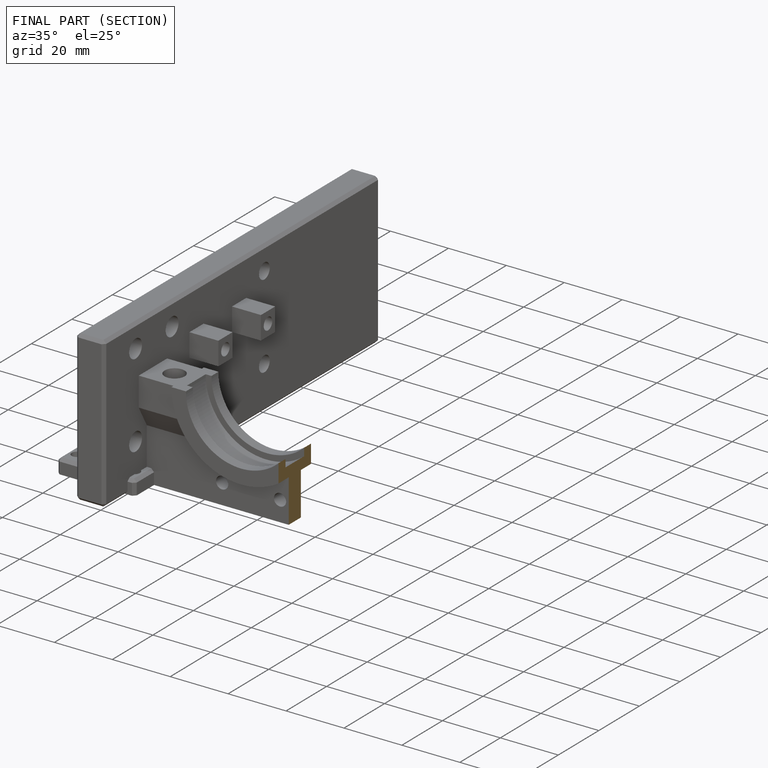
[diagram: finished part — half-section view (interior)]
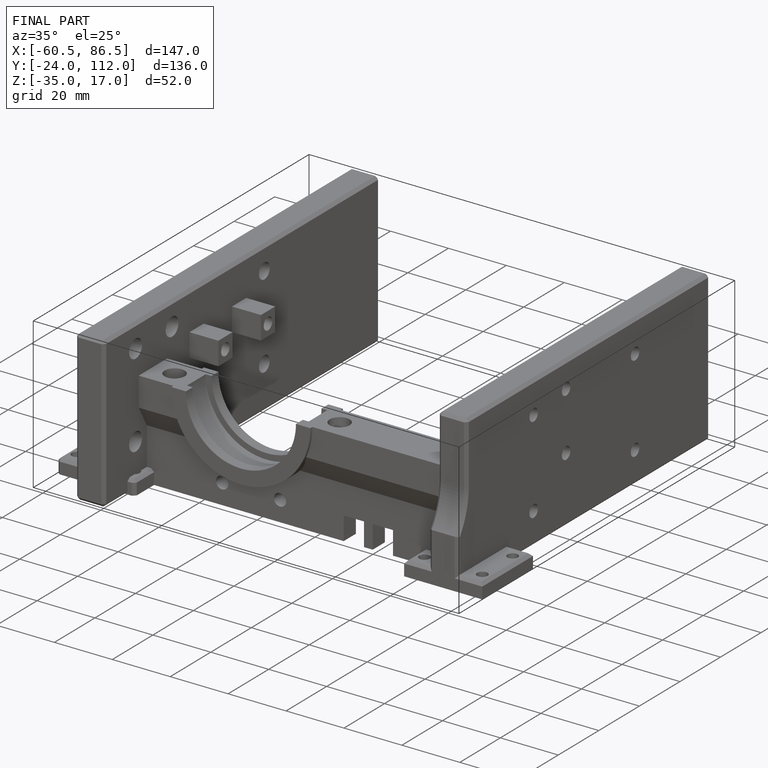
[diagram: finished part — iso view with bounding-box wireframe]
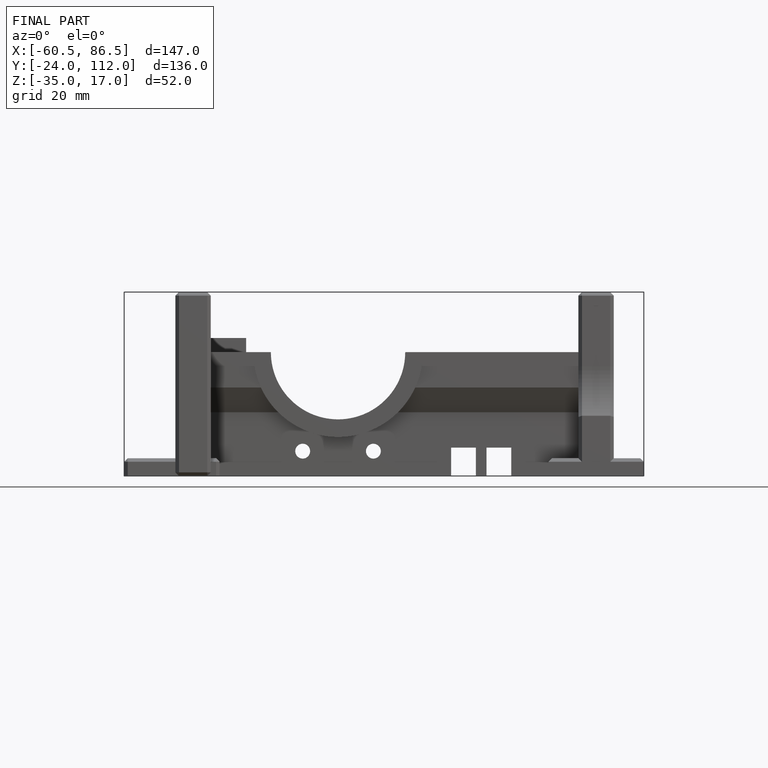
[diagram: finished part — front view with bounding-box wireframe]
